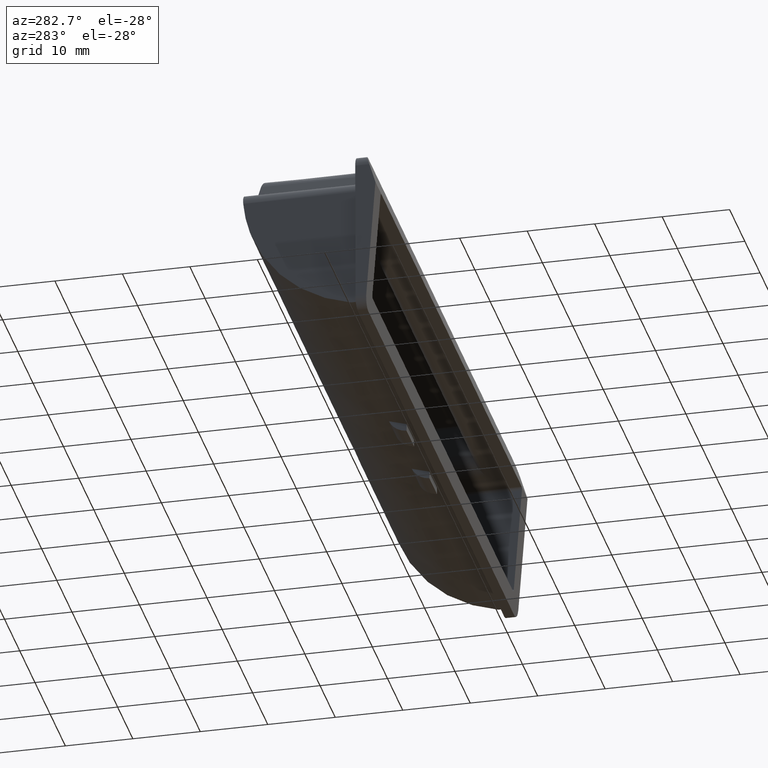
[diagram: clean part render]
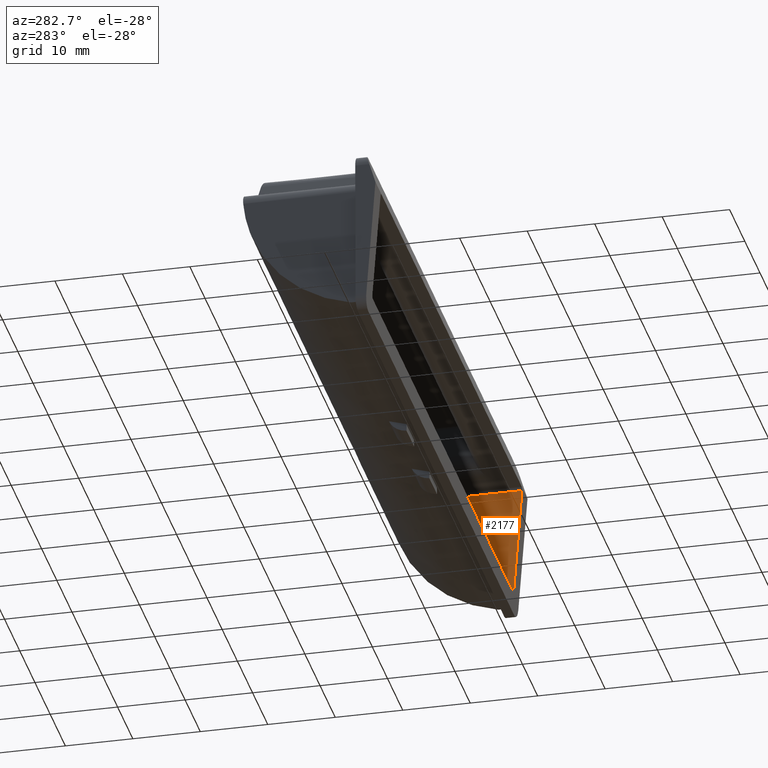
[diagram: same view with one face highlighted and labeled with its STEP entity id]
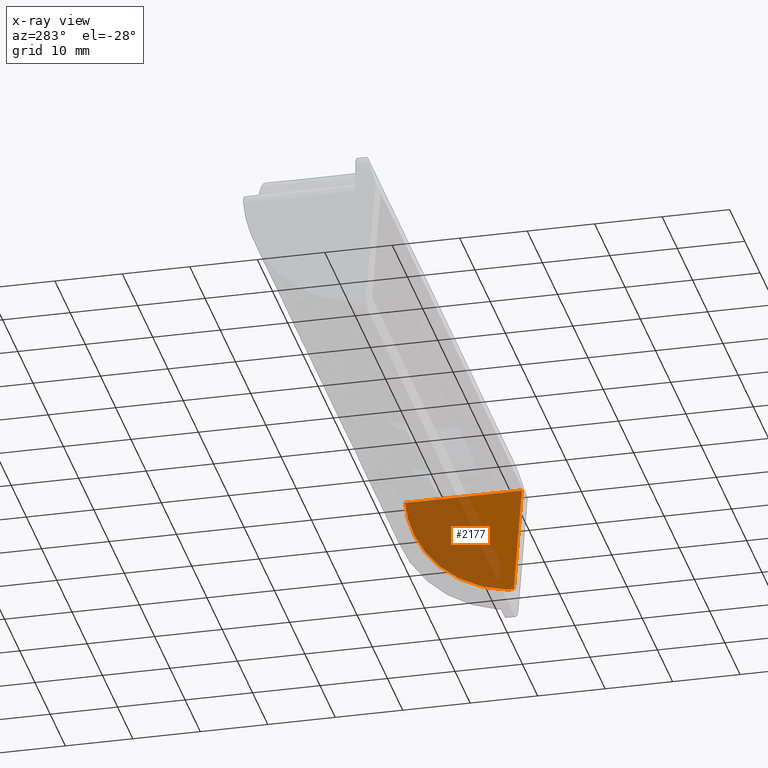
[diagram: x-ray of the same camera — body ghosted, the highlighted face saturated]
A machine part, auxiliary view. The second image highlights one B-rep face of the part: STEP entity #2177.
The next image is the same camera in x-ray: the body ghosted, the highlighted face saturated — about 61% of this face is hidden behind the body in this view.
In plain terms, the highlighted face is a freeform B-spline surface patch.
Its self-contained STEP definition (entity closure, byte-faithful):
#1153=CARTESIAN_POINT('',(46.500000000000000,14.381610894557420,-8.500000000000000));
#1154=VERTEX_POINT('',#1153);
#1199=CARTESIAN_POINT('',(46.500000000000000,-2.962499999999910,-8.500000000000000));
#1200=VERTEX_POINT('',#1199);
#1222=CARTESIAN_POINT('',(46.500000000000000,14.381610894557420,-8.500000000000000));
#1223=CARTESIAN_POINT('',(46.500000000000000,-2.962499999999910,-8.500000000000000));
#1224=QUASI_UNIFORM_CURVE('',1,(#1222,#1223),.UNSPECIFIED.,.F.,.U.);
#1225=EDGE_CURVE('',#1154,#1200,#1224,.T.);
#1247=CARTESIAN_POINT('',(46.500000000000000,-0.898758566270226,-24.500000000000000));
#1248=VERTEX_POINT('',#1247);
#1276=CARTESIAN_POINT('',(46.500000000000000,-0.898758566270231,-24.500000000000000));
#1277=CARTESIAN_POINT('',(46.499999999999993,13.146273888254607,-22.616777472797335));
#1278=CARTESIAN_POINT('',(46.500000000000000,14.381610894557420,-8.499999999999996));
#1286=(BOUNDED_CURVE()B_SPLINE_CURVE(2,(#1276,#1277,#1278),.UNSPECIFIED.,.F.,.U.)CURVE()GEOMETRIC_REPRESENTATION_ITEM()QUASI_UNIFORM_CURVE()RATIONAL_B_SPLINE_CURVE((1.0,0.780638005092972,1.0))REPRESENTATION_ITEM(''));
#1287=EDGE_CURVE('',#1248,#1154,#1286,.T.);
#1322=CARTESIAN_POINT('',(46.500000000000000,-1.762500000000000,-24.500000000000000));
#1323=VERTEX_POINT('',#1322);
#1337=CARTESIAN_POINT('',(46.500000000000000,-1.762500000000000,-24.500000000000000));
#1338=CARTESIAN_POINT('',(46.500000000000000,-0.898758566270226,-24.500000000000000));
#1339=QUASI_UNIFORM_CURVE('',1,(#1337,#1338),.UNSPECIFIED.,.F.,.U.);
#1340=EDGE_CURVE('',#1323,#1248,#1339,.T.);
#2162=CARTESIAN_POINT('',(46.500000000000000,-3.828838468380902,-7.700800031011105));
#2163=CARTESIAN_POINT('',(46.500000000000000,15.247949673075279,-7.700800031011105));
#2164=CARTESIAN_POINT('',(46.500000000000000,-3.828838468380902,-25.299200398142339));
#2165=CARTESIAN_POINT('',(46.500000000000000,15.247949673075279,-25.299200398142339));
#2166=B_SPLINE_SURFACE_WITH_KNOTS('',1,1,((#2162,#2164),(#2163,#2165)),.UNSPECIFIED.,.F.,.F.,.U.,(2,2),(2,2),(0.0,19.076788141456181),(0.0,17.598400367131230),.UNSPECIFIED.);
#2167=CARTESIAN_POINT('',(46.500000000000000,-1.762500000000000,-24.500000000000000));
#2168=CARTESIAN_POINT('',(46.500000000000000,-2.962499999999910,-8.500000000000000));
#2169=QUASI_UNIFORM_CURVE('',1,(#2167,#2168),.UNSPECIFIED.,.F.,.U.);
#2170=EDGE_CURVE('',#1323,#1200,#2169,.T.);
#2171=ORIENTED_EDGE('',*,*,#2170,.T.);
#2172=ORIENTED_EDGE('',*,*,#1225,.F.);
#2173=ORIENTED_EDGE('',*,*,#1287,.F.);
#2174=ORIENTED_EDGE('',*,*,#1340,.F.);
#2175=EDGE_LOOP('',(#2171,#2172,#2173,#2174));
#2176=FACE_OUTER_BOUND('',#2175,.T.);
#2177=ADVANCED_FACE('',(#2176),#2166,.T.);